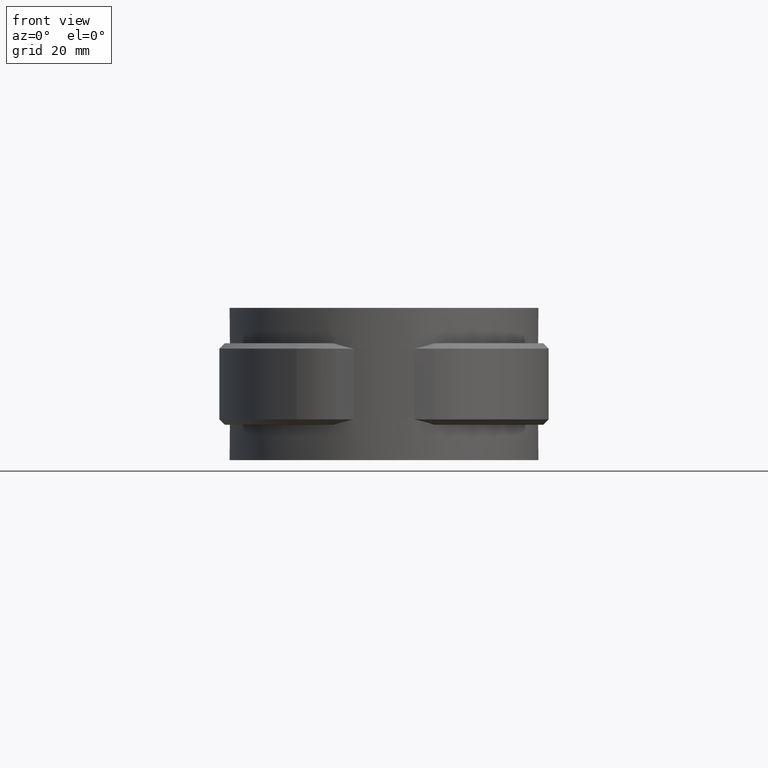
[diagram: clean part render]
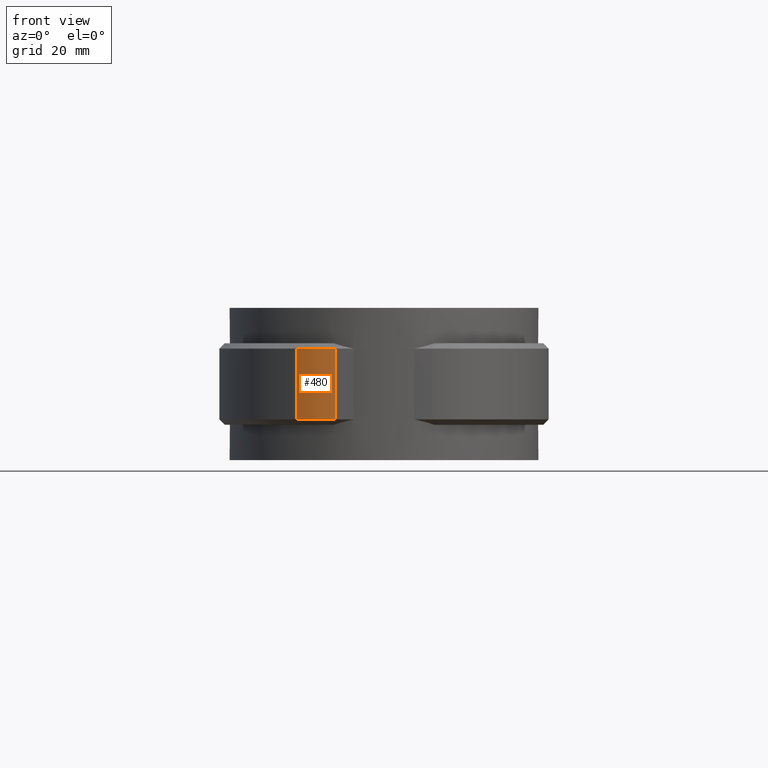
[diagram: same view with one face highlighted and labeled with its STEP entity id]
A machine part, front view. The second image highlights one B-rep face of the part: STEP entity #480.
In plain terms, the highlighted cylindrical surface (partial cylindrical patch) has radius 13.6 mm, axis along (0, 0, 1).
Its self-contained STEP definition (entity closure, byte-faithful):
#480 = ADVANCED_FACE( '', ( #960 ), #961, .T. );
#960 = FACE_OUTER_BOUND( '', #2290, .T. );
#961 = CYLINDRICAL_SURFACE( '', #2291, 13.6000000000000 );
#2290 = EDGE_LOOP( '', ( #5211, #5212, #5213, #5214 ) );
#2291 = AXIS2_PLACEMENT_3D( '', #5215, #5216, #5217 );
#5211 = ORIENTED_EDGE( '', *, *, #8035, .F. );
#5212 = ORIENTED_EDGE( '', *, *, #7875, .T. );
#5213 = ORIENTED_EDGE( '', *, *, #8027, .T. );
#5214 = ORIENTED_EDGE( '', *, *, #8036, .T. );
#5215 = CARTESIAN_POINT( '', ( -8.88873022427839, -14.2500000000000, -20.0000000000000 ) );
#5216 = DIRECTION( '', ( 0.000000000000000, 0.000000000000000, 1.00000000000000 ) );
#5217 = DIRECTION( '', ( 0.194983714095246, 0.980806480014087, 0.000000000000000 ) );
#7875 = EDGE_CURVE( '', #9050, #9047, #9051, .T. );
#8027 = EDGE_CURVE( '', #9047, #9297, #9298, .T. );
#8035 = EDGE_CURVE( '', #9050, #9301, #9308, .T. );
#8036 = EDGE_CURVE( '', #9297, #9301, #9309, .T. );
#9047 = VERTEX_POINT( '', #12173 );
#9050 = VERTEX_POINT( '', #12177 );
#9051 = CIRCLE( '', #12178, 13.6000000000000 );
#9297 = VERTEX_POINT( '', #13230 );
#9298 = LINE( '', #13231, #13232 );
#9301 = VERTEX_POINT( '', #13237 );
#9308 = LINE( '', #13247, #13248 );
#9309 = CIRCLE( '', #13249, 13.6000000000000 );
#12173 = CARTESIAN_POINT( '', ( -8.88873022427839, -27.8500000000000, -19.0000000000000 ) );
#12177 = CARTESIAN_POINT( '', ( -16.0865111739769, -25.7891485561179, -19.0000000000000 ) );
#12178 = AXIS2_PLACEMENT_3D( '', #15122, #15123, #15124 );
#13230 = CARTESIAN_POINT( '', ( -8.88873022427839, -27.8500000000000, -6.00000000000000 ) );
#13231 = CARTESIAN_POINT( '', ( -8.88873022427839, -27.8500000000000, -20.0000000000000 ) );
#13232 = VECTOR( '', #15286, 1000.00000000000 );
#13237 = CARTESIAN_POINT( '', ( -16.0865111739769, -25.7891485561179, -6.00000000000000 ) );
#13247 = CARTESIAN_POINT( '', ( -16.0865111739769, -25.7891485561179, -20.0000000000000 ) );
#13248 = VECTOR( '', #15298, 1000.00000000000 );
#13249 = AXIS2_PLACEMENT_3D( '', #15299, #15300, #15301 );
#15122 = CARTESIAN_POINT( '', ( -8.88873022427839, -14.2500000000000, -19.0000000000000 ) );
#15123 = DIRECTION( '', ( 0.000000000000000, 0.000000000000000, 1.00000000000000 ) );
#15124 = DIRECTION( '', ( 1.00000000000000, 0.000000000000000, 0.000000000000000 ) );
#15286 = DIRECTION( '', ( 0.000000000000000, 0.000000000000000, 1.00000000000000 ) );
#15298 = DIRECTION( '', ( 0.000000000000000, 0.000000000000000, 1.00000000000000 ) );
#15299 = CARTESIAN_POINT( '', ( -8.88873022427839, -14.2500000000000, -6.00000000000000 ) );
#15300 = DIRECTION( '', ( 0.000000000000000, 0.000000000000000, -1.00000000000000 ) );
#15301 = DIRECTION( '', ( -1.00000000000000, 0.000000000000000, 0.000000000000000 ) );